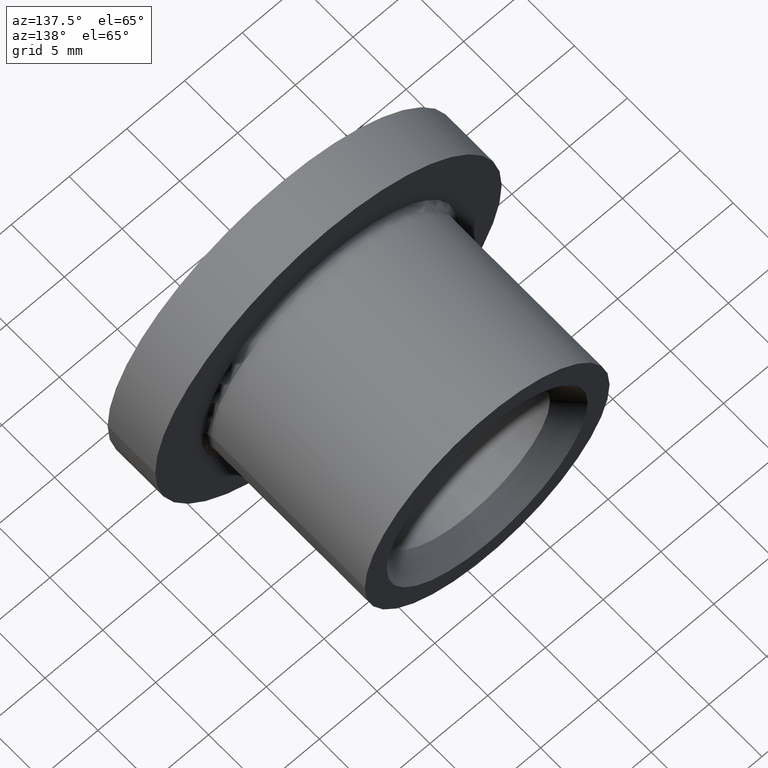
[diagram: clean part render]
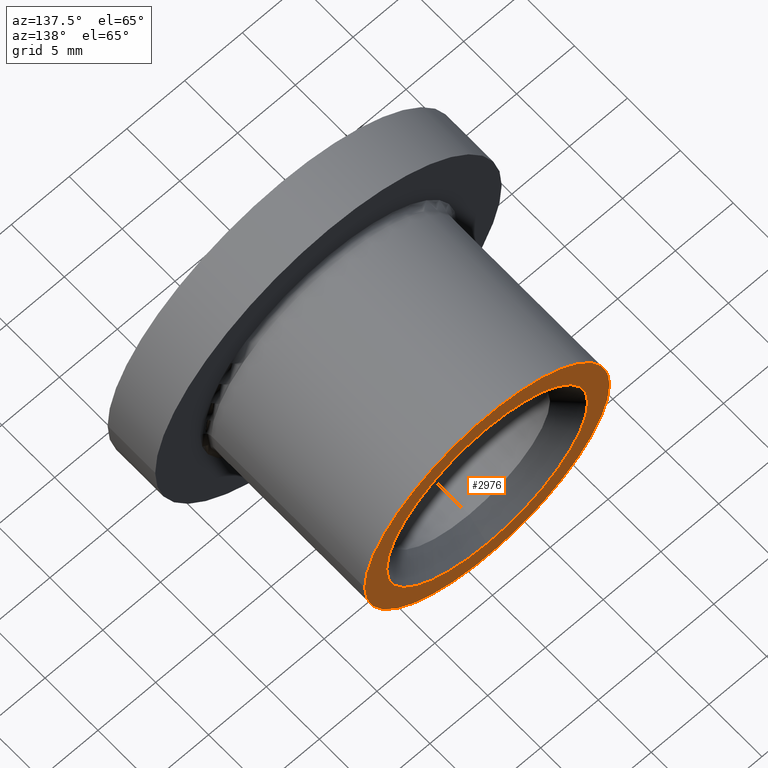
[diagram: same view with one face highlighted and labeled with its STEP entity id]
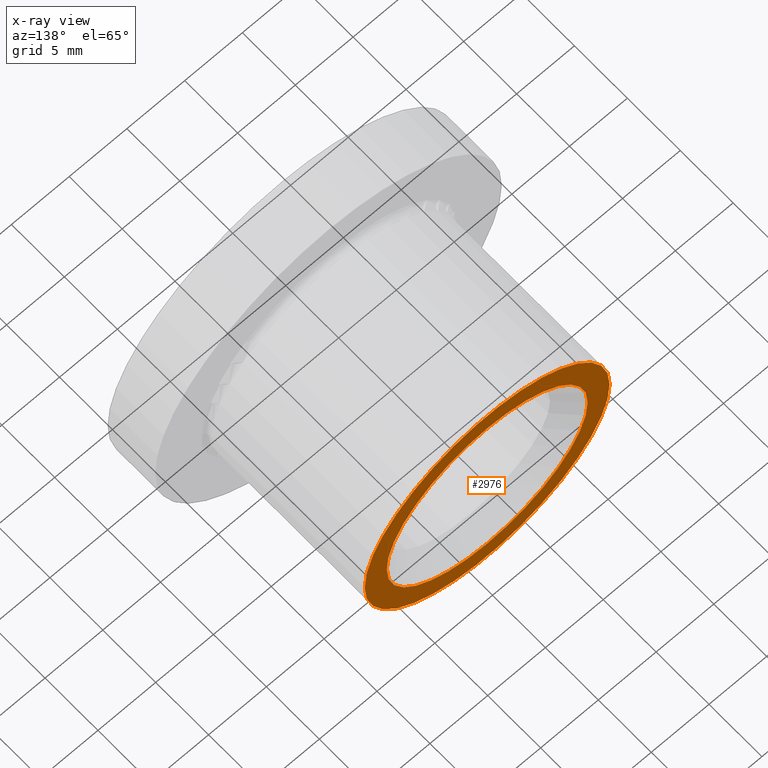
[diagram: x-ray of the same camera — body ghosted, the highlighted face saturated]
A machine part, auxiliary view. The second image highlights one B-rep face of the part: STEP entity #2976.
The next image is the same camera in x-ray: the body ghosted, the highlighted face saturated — about 0% of this face is hidden behind the body in this view.
In plain terms, the highlighted planar face has unit normal (0, -1, 0).
Its self-contained STEP definition (entity closure, byte-faithful):
#377 = CIRCLE ( 'NONE', #3311, 8.699999999999999300 ) ;
#379 = CARTESIAN_POINT ( 'NONE',  ( 10.60000000000000000, 19.50000000000000400, 1.298125607096194400E-015 ) ) ;
#1074 = CARTESIAN_POINT ( 'NONE',  ( 4.531193156845202300E-016, 19.50000000000000400, -8.699999999999999300 ) ) ;
#1296 = ORIENTED_EDGE ( 'NONE', *, *, #9492, .T. ) ;
#2252 = DIRECTION ( 'NONE',  ( -1.000000000000000000, 0.0000000000000000000, 0.0000000000000000000 ) ) ;
#2326 = CARTESIAN_POINT ( 'NONE',  ( -6.123233995736770200E-016, 19.50000000000000400, 8.699999999999999300 ) ) ;
#2457 = AXIS2_PLACEMENT_3D ( 'NONE', #10706, #8756, #2252 ) ;
#2458 = CIRCLE ( 'NONE', #2457, 10.60000000000000000 ) ;
#2976 = ADVANCED_FACE ( 'NONE', ( #11784, #6595 ), #9232, .F. ) ;
#3311 = AXIS2_PLACEMENT_3D ( 'NONE', #10818, #5163, #9285 ) ;
#3433 = CARTESIAN_POINT ( 'NONE',  ( -6.123233995736769200E-016, 19.50000000000000400, 0.0000000000000000000 ) ) ;
#3539 = ORIENTED_EDGE ( 'NONE', *, *, #9906, .F. ) ;
#3979 = AXIS2_PLACEMENT_3D ( 'NONE', #9198, #10929, #7173 ) ;
#4139 = AXIS2_PLACEMENT_3D ( 'NONE', #3433, #4315, #10954 ) ;
#4315 = DIRECTION ( 'NONE',  ( -3.140119997813727100E-017, 1.000000000000000000, -0.0000000000000000000 ) ) ;
#4443 = EDGE_LOOP ( 'NONE', ( #6690, #1296 ) ) ;
#5163 = DIRECTION ( 'NONE',  ( -0.0000000000000000000, 1.000000000000000000, -0.0000000000000000000 ) ) ;
#5580 = EDGE_CURVE ( 'NONE', #12095, #5848, #7096, .T. ) ;
#5848 = VERTEX_POINT ( 'NONE', #379 ) ;
#6091 = DIRECTION ( 'NONE',  ( -0.0000000000000000000, 1.000000000000000000, -0.0000000000000000000 ) ) ;
#6595 = FACE_OUTER_BOUND ( 'NONE', #4443, .T. ) ;
#6690 = ORIENTED_EDGE ( 'NONE', *, *, #5580, .T. ) ;
#6817 = CARTESIAN_POINT ( 'NONE',  ( -10.60000000000000000, 19.50000000000000400, 0.0000000000000000000 ) ) ;
#7050 = DIRECTION ( 'NONE',  ( 0.0000000000000000000, 0.0000000000000000000, 1.000000000000000000 ) ) ;
#7096 = CIRCLE ( 'NONE', #4139, 10.60000000000000000 ) ;
#7173 = DIRECTION ( 'NONE',  ( 1.000000000000000000, 3.140119997813727100E-017, 0.0000000000000000000 ) ) ;
#7553 = EDGE_CURVE ( 'NONE', #7577, #8212, #10495, .T. ) ;
#7577 = VERTEX_POINT ( 'NONE', #2326 ) ;
#8212 = VERTEX_POINT ( 'NONE', #1074 ) ;
#8756 = DIRECTION ( 'NONE',  ( -3.140119997813727100E-017, 1.000000000000000000, -0.0000000000000000000 ) ) ;
#9047 = EDGE_LOOP ( 'NONE', ( #11605, #3539 ) ) ;
#9198 = CARTESIAN_POINT ( 'NONE',  ( 10.60000000000000000, 19.50000000000000400, 0.0000000000000000000 ) ) ;
#9232 = PLANE ( 'NONE',  #3979 ) ;
#9285 = DIRECTION ( 'NONE',  ( 0.0000000000000000000, 0.0000000000000000000, 1.000000000000000000 ) ) ;
#9492 = EDGE_CURVE ( 'NONE', #5848, #12095, #2458, .T. ) ;
#9906 = EDGE_CURVE ( 'NONE', #8212, #7577, #377, .T. ) ;
#10495 = CIRCLE ( 'NONE', #11522, 8.699999999999999300 ) ;
#10706 = CARTESIAN_POINT ( 'NONE',  ( -6.123233995736769200E-016, 19.50000000000000400, 0.0000000000000000000 ) ) ;
#10818 = CARTESIAN_POINT ( 'NONE',  ( -6.123233995736770200E-016, 19.50000000000000400, 0.0000000000000000000 ) ) ;
#10929 = DIRECTION ( 'NONE',  ( 3.140119997813727100E-017, -1.000000000000000000, 0.0000000000000000000 ) ) ;
#10954 = DIRECTION ( 'NONE',  ( -1.000000000000000000, 0.0000000000000000000, 0.0000000000000000000 ) ) ;
#11522 = AXIS2_PLACEMENT_3D ( 'NONE', #11814, #6091, #7050 ) ;
#11605 = ORIENTED_EDGE ( 'NONE', *, *, #7553, .F. ) ;
#11784 = FACE_BOUND ( 'NONE', #9047, .T. ) ;
#11814 = CARTESIAN_POINT ( 'NONE',  ( -6.123233995736770200E-016, 19.50000000000000400, 0.0000000000000000000 ) ) ;
#12095 = VERTEX_POINT ( 'NONE', #6817 ) ;